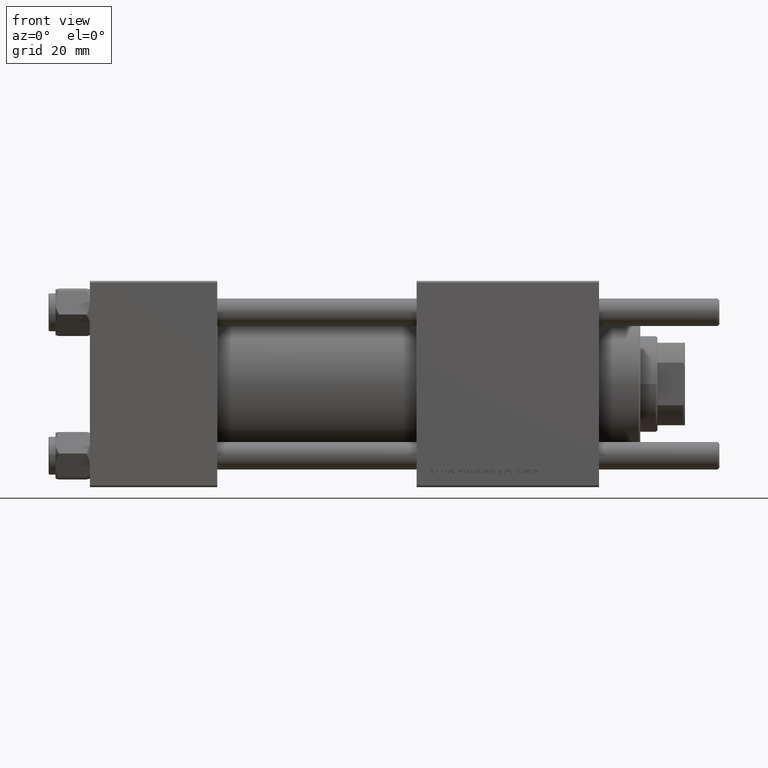
[diagram: clean part render]
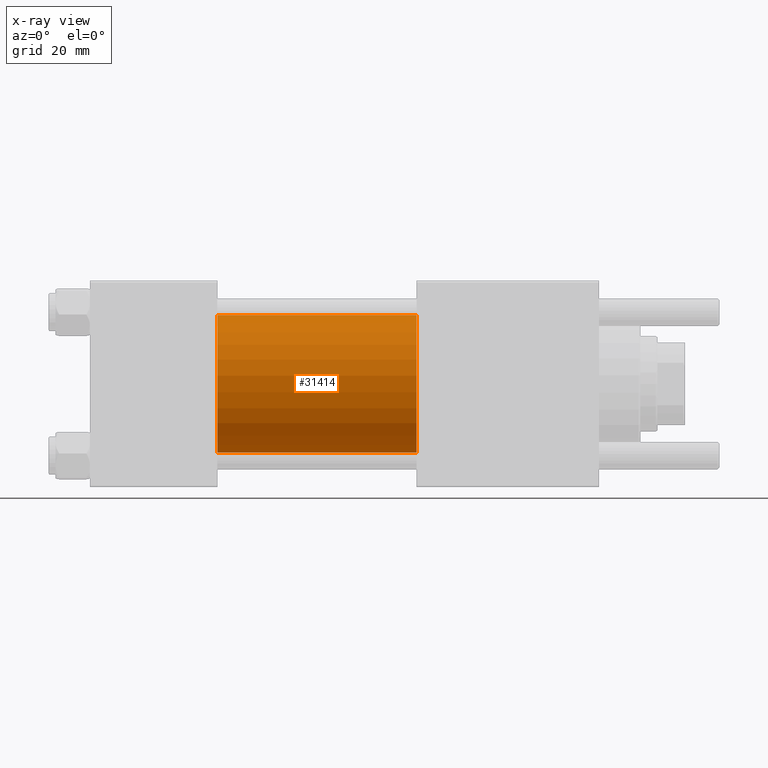
[diagram: x-ray — body ghosted, one internal face saturated and labeled with its STEP entity id]
A machine part, front view, then the same camera in x-ray: the body is ghosted and one INTERNAL B-rep face — a face not visible from any outside direction — is saturated and labeled: STEP entity #31414.
In plain terms, the highlighted cylindrical surface (partial cylindrical patch) has radius 20 mm, axis along (-1, -0, -0).
Its self-contained STEP definition (entity closure, byte-faithful):
#347 = LINE ( 'NONE', #25939, #620 ) ;
#620 = VECTOR ( 'NONE', #4938, 1000.000000000000000 ) ;
#3067 = EDGE_CURVE ( 'NONE', #13671, #31236, #10990, .T. ) ;
#4833 = DIRECTION ( 'NONE',  ( 0.000000000000000000, 0.000000000000000000, -1.000000000000000000 ) ) ;
#4938 = DIRECTION ( 'NONE',  ( -1.000000000000000000, -0.000000000000000000, -0.000000000000000000 ) ) ;
#7541 = EDGE_CURVE ( 'NONE', #13671, #36317, #50805, .T. ) ;
#10990 = CIRCLE ( 'NONE', #18311, 20.00000000000000000 ) ;
#12076 = DIRECTION ( 'NONE',  ( 0.000000000000000000, 0.000000000000000000, 1.000000000000000000 ) ) ;
#12454 = ORIENTED_EDGE ( 'NONE', *, *, #53550, .T. ) ;
#13671 = VERTEX_POINT ( 'NONE', #45917 ) ;
#15548 = CARTESIAN_POINT ( 'NONE',  ( 37.00000000000000000, -1.527916156705046464E-16, -20.00000000000000000 ) ) ;
#16953 = CYLINDRICAL_SURFACE ( 'NONE', #21277, 20.00000000000000000 ) ;
#17226 = DIRECTION ( 'NONE',  ( 1.000000000000000000, 0.000000000000000000, 0.000000000000000000 ) ) ;
#17300 = CARTESIAN_POINT ( 'NONE',  ( 95.00000000000000000, -2.602085213965210642E-15, 0.000000000000000000 ) ) ;
#18311 = AXIS2_PLACEMENT_3D ( 'NONE', #17300, #34814, #48292 ) ;
#18441 = VECTOR ( 'NONE', #20641, 1000.000000000000000 ) ;
#19392 = EDGE_LOOP ( 'NONE', ( #46024, #12454, #26866, #21917 ) ) ;
#20641 = DIRECTION ( 'NONE',  ( -1.000000000000000000, -0.000000000000000000, -0.000000000000000000 ) ) ;
#21277 = AXIS2_PLACEMENT_3D ( 'NONE', #21536, #51410, #12076 ) ;
#21536 = CARTESIAN_POINT ( 'NONE',  ( 95.00000000000000000, -2.602085213965210642E-15, 0.000000000000000000 ) ) ;
#21917 = ORIENTED_EDGE ( 'NONE', *, *, #7541, .F. ) ;
#23765 = EDGE_CURVE ( 'NONE', #36317, #55639, #40824, .T. ) ;
#25939 = CARTESIAN_POINT ( 'NONE',  ( 95.00000000000000000, -1.527916156705046464E-16, -20.00000000000000000 ) ) ;
#26866 = ORIENTED_EDGE ( 'NONE', *, *, #23765, .F. ) ;
#31236 = VERTEX_POINT ( 'NONE', #32771 ) ;
#31414 = ADVANCED_FACE ( 'NONE', ( #56311 ), #16953, .F. ) ;
#32771 = CARTESIAN_POINT ( 'NONE',  ( 95.00000000000000000, -1.527916156705046464E-16, -20.00000000000000000 ) ) ;
#34814 = DIRECTION ( 'NONE',  ( 1.000000000000000000, 0.000000000000000000, 0.000000000000000000 ) ) ;
#36317 = VERTEX_POINT ( 'NONE', #39954 ) ;
#39954 = CARTESIAN_POINT ( 'NONE',  ( 37.00000000000000000, -2.602085213965210642E-15, 20.00000000000000000 ) ) ;
#40824 = CIRCLE ( 'NONE', #41734, 20.00000000000000000 ) ;
#41734 = AXIS2_PLACEMENT_3D ( 'NONE', #44194, #17226, #4833 ) ;
#44194 = CARTESIAN_POINT ( 'NONE',  ( 37.00000000000000000, -2.602085213965210642E-15, 0.000000000000000000 ) ) ;
#45917 = CARTESIAN_POINT ( 'NONE',  ( 95.00000000000000000, -2.602085213965210642E-15, 20.00000000000000000 ) ) ;
#46024 = ORIENTED_EDGE ( 'NONE', *, *, #3067, .T. ) ;
#48292 = DIRECTION ( 'NONE',  ( 0.000000000000000000, 0.000000000000000000, -1.000000000000000000 ) ) ;
#50805 = LINE ( 'NONE', #55126, #18441 ) ;
#51410 = DIRECTION ( 'NONE',  ( -1.000000000000000000, -0.000000000000000000, -0.000000000000000000 ) ) ;
#53550 = EDGE_CURVE ( 'NONE', #31236, #55639, #347, .T. ) ;
#55126 = CARTESIAN_POINT ( 'NONE',  ( 95.00000000000000000, -2.602085213965210642E-15, 20.00000000000000000 ) ) ;
#55639 = VERTEX_POINT ( 'NONE', #15548 ) ;
#56311 = FACE_OUTER_BOUND ( 'NONE', #19392, .T. ) ;